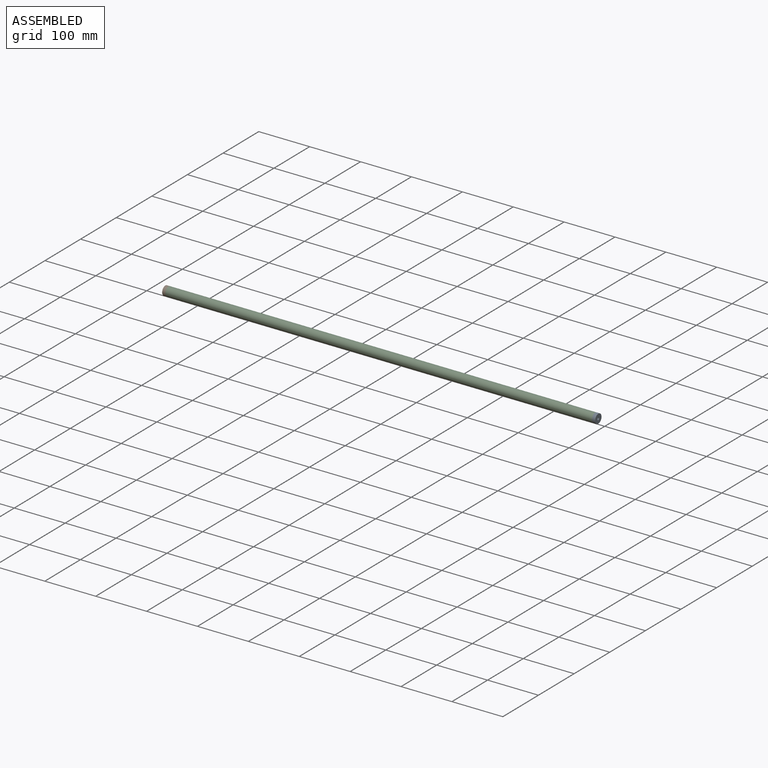
[diagram: assembled view]
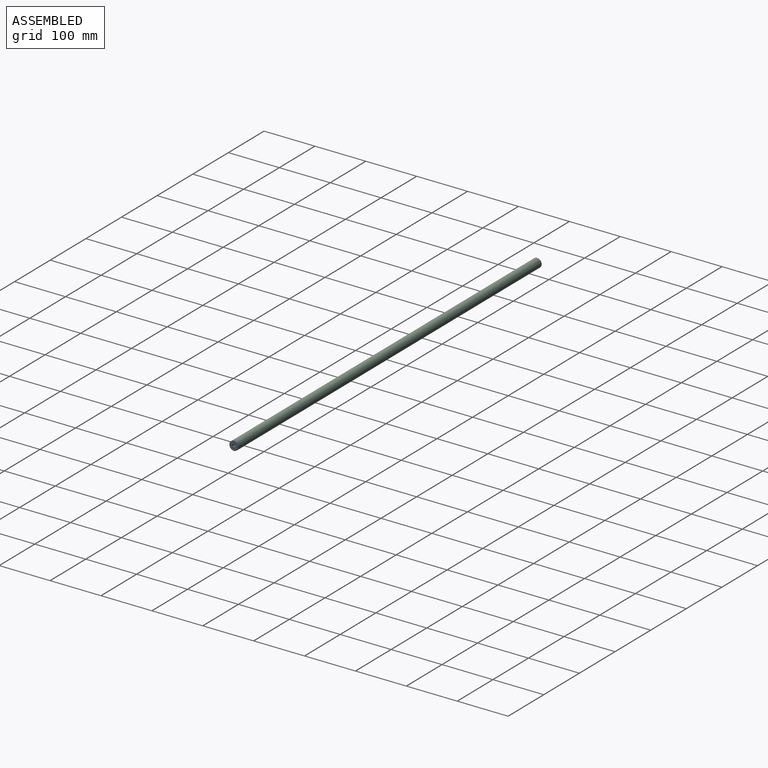
[diagram: assembled view, second angle]
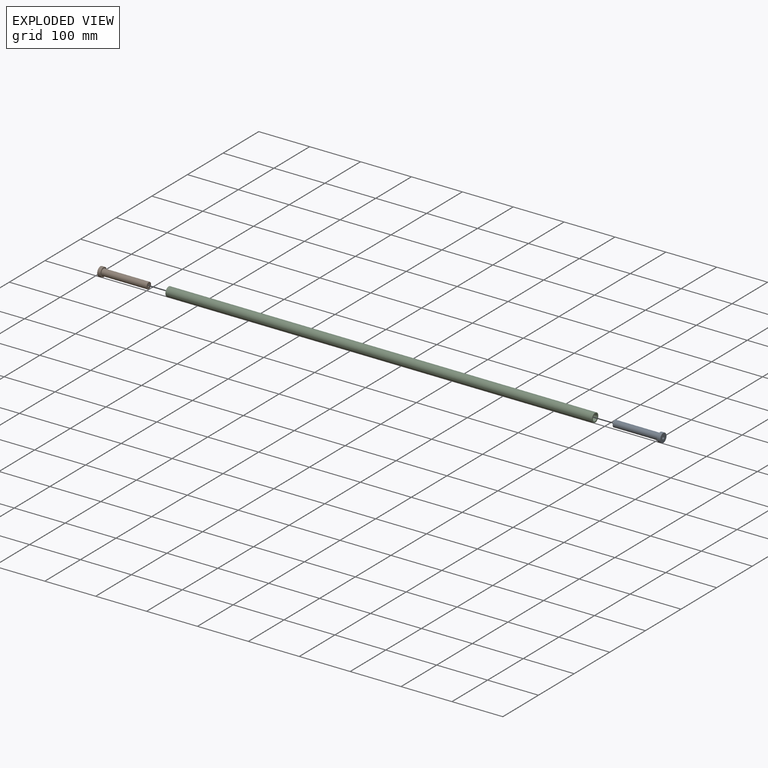
[diagram: exploded view]
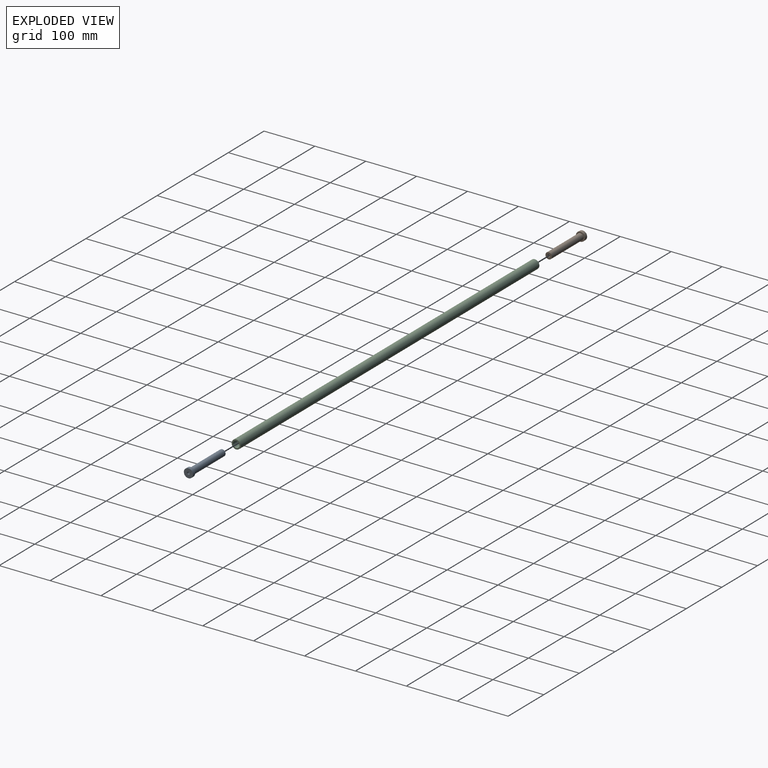
[diagram: exploded view, second angle]
ASSEMBLY  parts=3 mates=2
PART A: 9 faces, bbox 18x96.1x18 mm
  f0: plane 12.89x12.89mm, normal (0,1,0), area 104.9mm2, adj f1,f5,f6,f7
  f1: cylinder r=6.35mm len=88.9mm, axis (0,1,0), area 3547mm2, adj f0,f4
  f2: cylinder r=8.89mm len=17.78mm, axis (0,1,0), area 354.7mm2, adj f3,f4
  f3: plane 17.97x17.97mm, normal (0,-1,0), area 226.5mm2, adj f2,f5,f7,f8
  f4: plane 17.78x17.78mm, normal (0,1,0), area 121.6mm2, adj f1,f2
  f5: cylinder r=2.54mm len=95.25mm, axis (0,-1,0), area 461.3mm2, adj f0,f3,f6,f7,f8
  f6: plane 0.42x0.42mm, normal (0,0,1), area 0.1mm2, adj f0,f5,f7
  f7: bspline ~95.91x5.73mm, area 1778.1mm2, adj f0,f3,f5,f6,f8
  f8: plane 0.42x0.42mm, normal (0,0,-1), area 0.1mm2, adj f3,f5,f7
PART B: same geometry as A
PART C: 4 faces, bbox 838.2x17.8x17.8 mm
  f0: cylinder r=6.35mm len=838.2mm, axis (-1,0,0), area 33442.7mm2, adj f2,f3
  f1: cylinder r=8.89mm len=838.2mm, axis (-1,0,0), area 46819.8mm2, adj f2,f3
  f2: plane 17.78x17.78mm, normal (1,0,0), area 121.6mm2, adj f0,f1
  f3: plane 17.78x17.78mm, normal (-1,0,0), area 121.6mm2, adj f0,f1
PLACE A rot(axis=(-0.58,0.58,0.58),120deg) t=(332.09,0.31,-1.17)mm
PLACE B rot(axis=(-0.58,-0.58,-0.58),120deg) t=(-328.31,0.31,-1.17)mm
PLACE C t=(1.89,0.31,-1.17)mm fixed
MATE fastened B.f1 <-> C.f1  axis (1,0,0) through (-417.21,0.31,-1.17)mm
MATE fastened C.f0 <-> A.f1  axis (1,0,0) through (420.99,0.31,-1.17)mm
